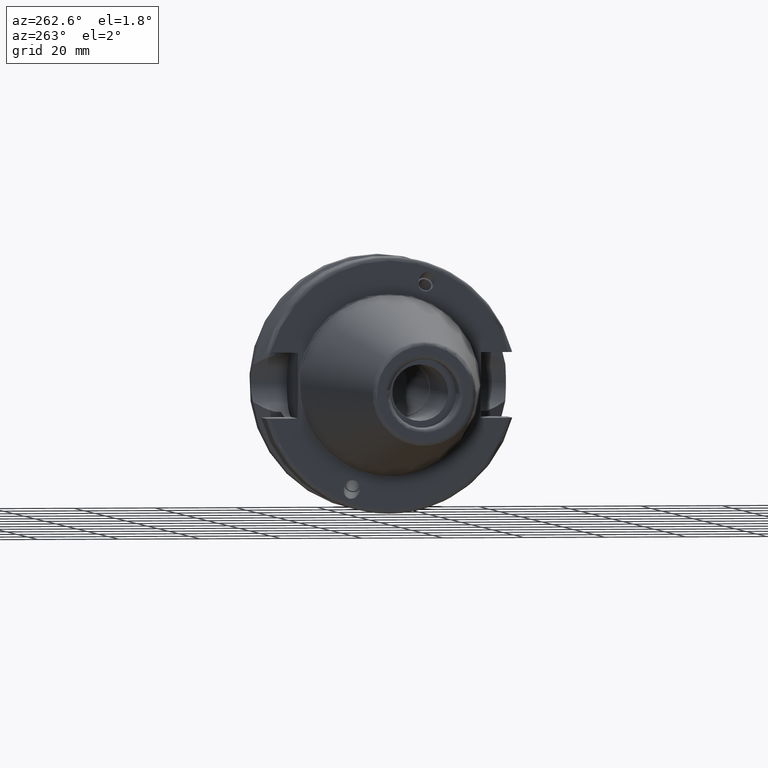
[diagram: clean part render]
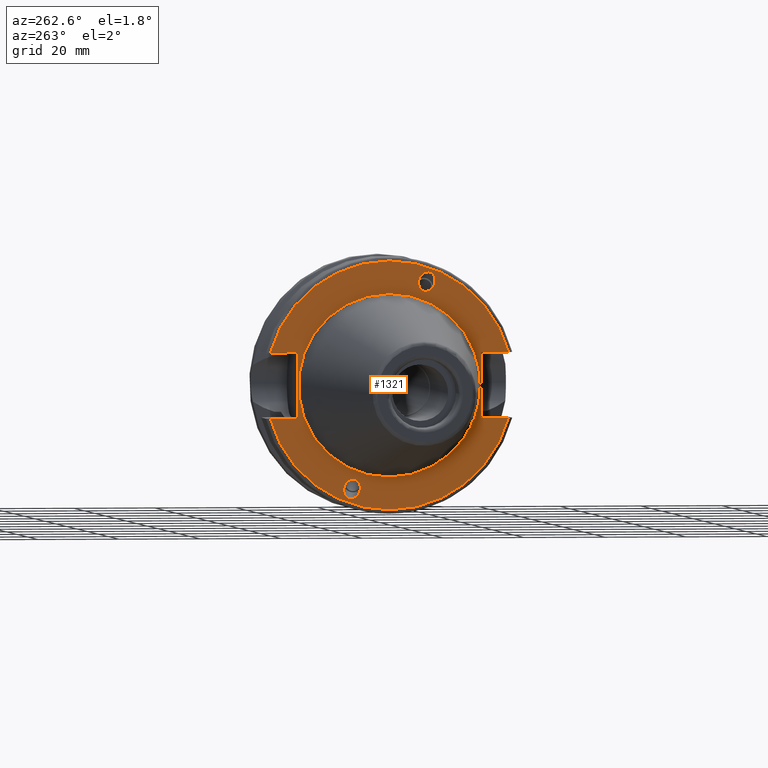
[diagram: same view with one face highlighted and labeled with its STEP entity id]
A machine part, auxiliary view. The second image highlights one B-rep face of the part: STEP entity #1321.
In plain terms, the highlighted planar face has unit normal (-1, 0, 0).
Its self-contained STEP definition (entity closure, byte-faithful):
#60=FACE_BOUND('',#303,.T.);
#61=FACE_BOUND('',#304,.T.);
#62=FACE_BOUND('',#305,.T.);
#83=ELLIPSE('',#1425,2.44154917752291,2.);
#92=ELLIPSE('',#1448,2.44154917752291,2.);
#209=FACE_OUTER_BOUND('',#302,.T.);
#302=EDGE_LOOP('',(#1184,#1185,#1186,#1187,#1188,#1189,#1190,#1191));
#303=EDGE_LOOP('',(#1192));
#304=EDGE_LOOP('',(#1193));
#305=EDGE_LOOP('',(#1194));
#364=CIRCLE('',#1476,30.5);
#383=CIRCLE('',#1511,22.5);
#384=CIRCLE('',#1513,30.5);
#429=LINE('',#2364,#497);
#433=LINE('',#2372,#501);
#436=LINE('',#2392,#504);
#447=LINE('',#2492,#515);
#450=LINE('',#2513,#518);
#452=LINE('',#2516,#520);
#497=VECTOR('',#1775,10.);
#501=VECTOR('',#1781,10.);
#504=VECTOR('',#1786,10.);
#515=VECTOR('',#1841,10.);
#518=VECTOR('',#1846,10.);
#520=VECTOR('',#1850,10.);
#573=VERTEX_POINT('',#2196);
#588=VERTEX_POINT('',#2277);
#606=VERTEX_POINT('',#2352);
#607=VERTEX_POINT('',#2363);
#609=VERTEX_POINT('',#2369);
#610=VERTEX_POINT('',#2371);
#625=VERTEX_POINT('',#2452);
#632=VERTEX_POINT('',#2489);
#633=VERTEX_POINT('',#2491);
#637=VERTEX_POINT('',#2512);
#651=VERTEX_POINT('',#2564);
#722=EDGE_CURVE('',#573,#573,#83,.T.);
#745=EDGE_CURVE('',#588,#588,#92,.T.);
#766=EDGE_CURVE('',#607,#606,#429,.T.);
#770=EDGE_CURVE('',#610,#609,#433,.T.);
#775=EDGE_CURVE('',#609,#607,#436,.T.);
#795=EDGE_CURVE('',#610,#625,#364,.T.);
#805=EDGE_CURVE('',#633,#632,#447,.T.);
#810=EDGE_CURVE('',#637,#625,#450,.T.);
#812=EDGE_CURVE('',#632,#637,#452,.T.);
#836=EDGE_CURVE('',#651,#651,#383,.T.);
#837=EDGE_CURVE('',#633,#606,#384,.T.);
#1184=ORIENTED_EDGE('',*,*,#766,.T.);
#1185=ORIENTED_EDGE('',*,*,#837,.F.);
#1186=ORIENTED_EDGE('',*,*,#805,.T.);
#1187=ORIENTED_EDGE('',*,*,#812,.T.);
#1188=ORIENTED_EDGE('',*,*,#810,.T.);
#1189=ORIENTED_EDGE('',*,*,#795,.F.);
#1190=ORIENTED_EDGE('',*,*,#770,.T.);
#1191=ORIENTED_EDGE('',*,*,#775,.T.);
#1192=ORIENTED_EDGE('',*,*,#722,.T.);
#1193=ORIENTED_EDGE('',*,*,#745,.T.);
#1194=ORIENTED_EDGE('',*,*,#836,.T.);
#1248=PLANE('',#1512);
#1321=ADVANCED_FACE('',(#209,#60,#61,#62),#1248,.T.);
#1425=AXIS2_PLACEMENT_3D('',#2198,#1697,#1698);
#1448=AXIS2_PLACEMENT_3D('',#2279,#1750,#1751);
#1476=AXIS2_PLACEMENT_3D('',#2453,#1828,#1829);
#1511=AXIS2_PLACEMENT_3D('',#2566,#1915,#1916);
#1512=AXIS2_PLACEMENT_3D('',#2567,#1917,#1918);
#1513=AXIS2_PLACEMENT_3D('',#2568,#1919,#1920);
#1697=DIRECTION('center_axis',(1.,0.,0.));
#1698=DIRECTION('ref_axis',(5.68400912649004E-17,-0.342020143325671,0.939692620785908));
#1750=DIRECTION('center_axis',(1.,0.,0.));
#1751=DIRECTION('ref_axis',(5.68400912649004E-17,0.342020143325671,-0.939692620785908));
#1775=DIRECTION('',(0.,-1.,0.));
#1781=DIRECTION('',(0.,1.,0.));
#1786=DIRECTION('',(0.,0.,1.));
#1828=DIRECTION('center_axis',(1.,0.,0.));
#1829=DIRECTION('ref_axis',(0.,0.,-1.));
#1841=DIRECTION('',(0.,-1.,0.));
#1846=DIRECTION('',(0.,1.,0.));
#1850=DIRECTION('',(0.,0.,-1.));
#1915=DIRECTION('center_axis',(1.,0.,0.));
#1916=DIRECTION('ref_axis',(0.,0.,-1.));
#1917=DIRECTION('center_axis',(-1.,0.,0.));
#1918=DIRECTION('ref_axis',(0.,0.,1.));
#1919=DIRECTION('center_axis',(1.,0.,0.));
#1920=DIRECTION('ref_axis',(0.,0.,-1.));
#2196=CARTESIAN_POINT('',(1.99999999999999,-8.39948487015999,23.0773950158154));
#2198=CARTESIAN_POINT('Origin',(1.99999999999999,-9.23454386979305,25.3717007612195));
#2277=CARTESIAN_POINT('',(1.99999999999999,8.39948487015999,-23.0773950158154));
#2279=CARTESIAN_POINT('Origin',(1.99999999999999,9.23454386979305,-25.3717007612195));
#2352=CARTESIAN_POINT('',(1.99999999999999,-29.4184890842477,8.05));
#2363=CARTESIAN_POINT('',(1.99999999999999,-22.6,8.05));
#2364=CARTESIAN_POINT('',(1.99999999999999,3.95,8.05));
#2369=CARTESIAN_POINT('',(1.99999999999999,-22.6,-8.05));
#2371=CARTESIAN_POINT('',(1.99999999999999,-29.4184890842477,-8.05));
#2372=CARTESIAN_POINT('',(1.99999999999999,3.95,-8.05));
#2392=CARTESIAN_POINT('',(1.99999999999999,-22.6,0.));
#2452=CARTESIAN_POINT('',(1.99999999999999,29.4184890842477,-8.05));
#2453=CARTESIAN_POINT('Origin',(1.99999999999999,0.,0.));
#2489=CARTESIAN_POINT('',(1.99999999999999,22.6,8.05));
#2491=CARTESIAN_POINT('',(1.99999999999999,29.4184890842477,8.05));
#2492=CARTESIAN_POINT('',(1.99999999999999,26.55,8.05));
#2512=CARTESIAN_POINT('',(1.99999999999999,22.6,-8.05));
#2513=CARTESIAN_POINT('',(1.99999999999999,26.55,-8.05));
#2516=CARTESIAN_POINT('',(1.99999999999999,22.6,0.));
#2564=CARTESIAN_POINT('',(2.,-2.75545529808154E-15,22.5));
#2566=CARTESIAN_POINT('Origin',(2.,0.,0.));
#2567=CARTESIAN_POINT('Origin',(1.99999999999999,30.5,0.));
#2568=CARTESIAN_POINT('Origin',(1.99999999999999,0.,0.));